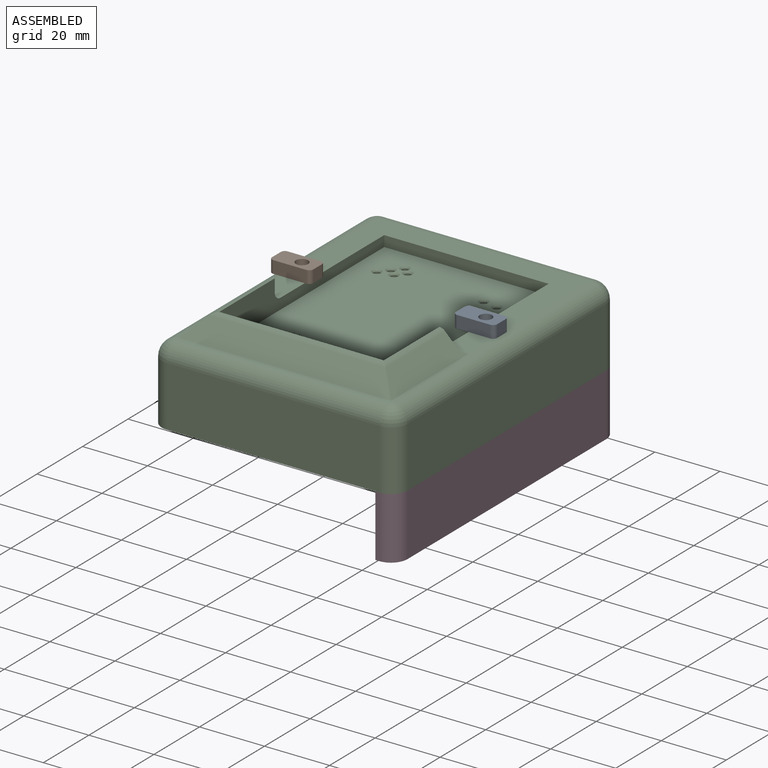
[diagram: assembled view]
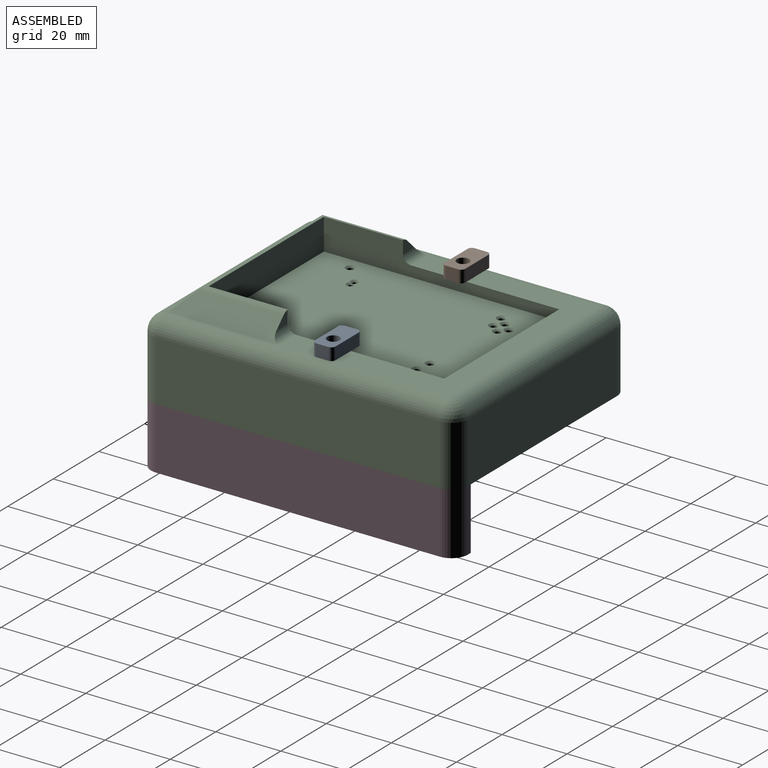
[diagram: assembled view, second angle]
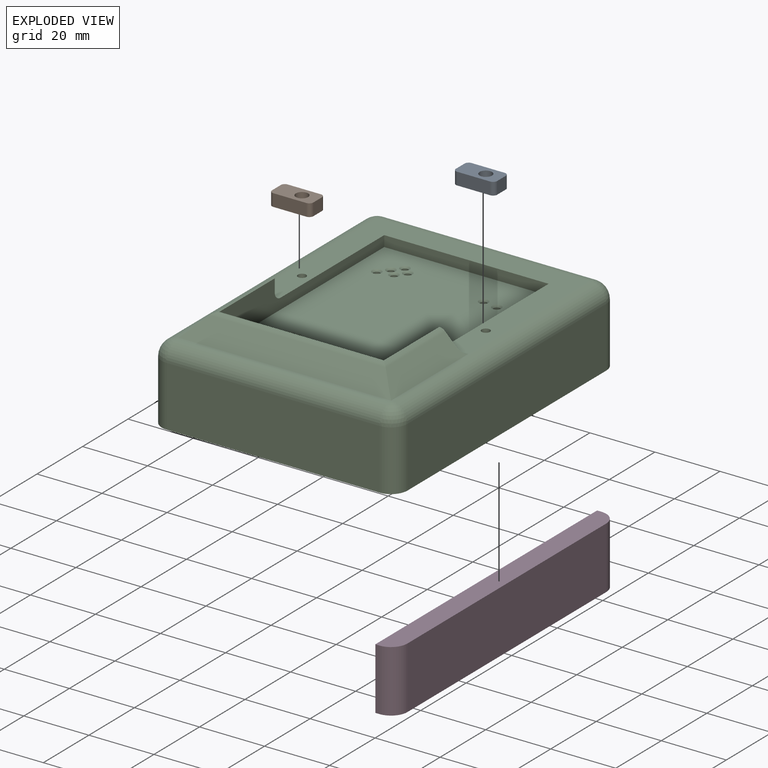
[diagram: exploded view]
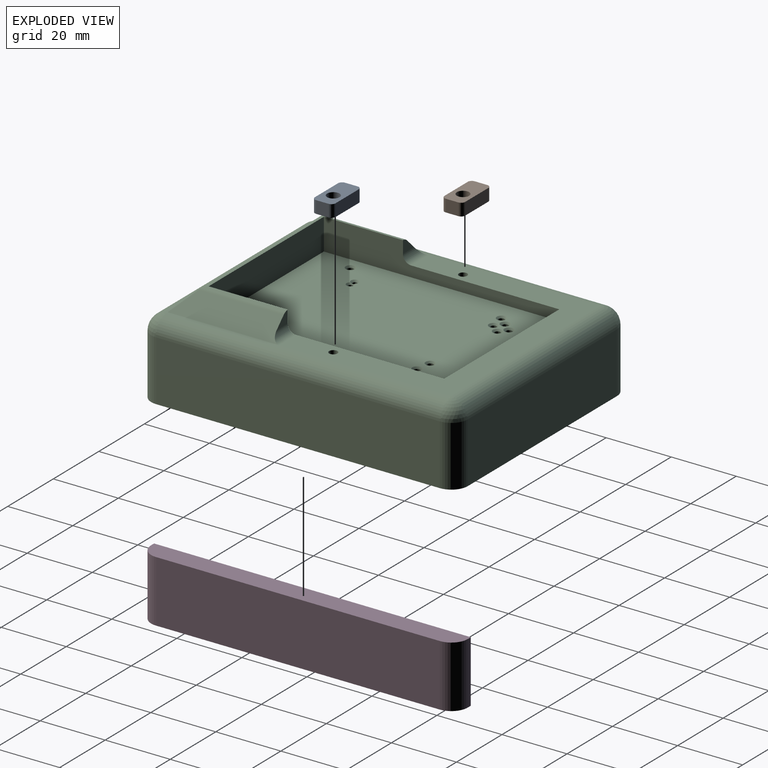
[diagram: exploded view, second angle]
ASSEMBLY  parts=4 mates=3
PART A: 11 faces, bbox 12.7x6.4x3.8 mm
  f0: plane 3.81x3.81mm, normal (1,0,0), area 14.5mm2, adj f5,f6,f7,f10
  f1: plane 10.16x3.81mm, normal (0,1,0), area 38.7mm2, adj f5,f6,f7,f8
  f2: plane 3.81x3.81mm, normal (-1,0,0), area 14.5mm2, adj f5,f6,f8,f9
  f3: cylinder r=1.91mm len=3.81mm, axis (0,0,-1), area 45.6mm2, adj f5,f6
  f4: plane 10.16x3.81mm, normal (0,-1,0), area 38.7mm2, adj f5,f6,f9,f10
  f5: plane 12.7x6.35mm, normal (0,0,1), area 67.9mm2, adj f0,f1,f2,f3,f4,f7,f8,f9
  f6: plane 12.7x6.35mm, normal (0,0,-1), area 67.9mm2, adj f0,f1,f2,f3,f4,f7,f8,f9
  f7: cylinder r=1.27mm len=3.81mm, axis (0,0,-1), area 7.6mm2, adj f0,f1,f5,f6
  f8: cylinder r=1.27mm len=3.81mm, axis (0,0,1), area 7.6mm2, adj f1,f2,f5,f6
  f9: cylinder r=1.27mm len=3.81mm, axis (0,0,-1), area 7.6mm2, adj f2,f4,f5,f6
  f10: cylinder r=1.27mm len=3.81mm, axis (0,0,1), area 7.6mm2, adj f0,f4,f5,f6
PART B: same geometry as A
PART C: 56 faces, bbox 75.6x97.4x30 mm
  f0: plane 87.25x18.54mm, normal (-1,0,0), area 1617.8mm2, adj f11,f35,f41,f44
  f1: plane 65.41x18.54mm, normal (0,-1,0), area 1212.7mm2, adj f11,f38,f42,f44
  f2: plane 87.25x18.54mm, normal (1,0,0), area 1617.8mm2, adj f11,f33,f37,f38
  f3: plane 72.42x9.65mm, normal (-1,0,0), area 395mm2, adj f4,f6,f10,f22,f45,f47,f55
  f4: plane 50.57x9.65mm, normal (0,1,0), area 488.1mm2, adj f3,f5,f22,f47
  f5: plane 72.42x9.65mm, normal (1,0,0), area 395mm2, adj f4,f6,f10,f22,f46,f47,f54
  f6: plane 50.57x3.3mm, normal (0,-1,0), area 167mm2, adj f3,f5,f10,f22
  f7: cylinder r=1.27mm len=23.62mm, axis (0,0,-1), area 188.5mm2, adj f10,f11
  f8: cylinder r=1.27mm len=23.62mm, axis (0,0,-1), area 188.5mm2, adj f10,f11
  f9: plane 65.41x18.54mm, normal (0,1,0), area 1212.7mm2, adj f11,f33,f35,f36
  f10: plane 65.41x52.96mm, normal (0,0,1), area 1150.5mm2, adj f3,f5,f6,f7,f8,f36,f37,f41
  f11: plane 97.41x75.57mm, normal (0,0,-1), area 7302.3mm2, adj f0,f1,f2,f7,f8,f9,f12,f13
  f12: cylinder r=0.72mm len=19.81mm, axis (0,0,-1), area 90.1mm2, adj f11,f23
  f13: cylinder r=0.72mm len=19.81mm, axis (0,0,-1), area 90.1mm2, adj f11,f24
  f14: cylinder r=0.95mm len=19.81mm, axis (0,0,-1), area 118.6mm2, adj f11,f29
  f15: cylinder r=0.95mm len=19.81mm, axis (0,0,-1), area 118.6mm2, adj f11,f28
  f16: cylinder r=0.95mm len=19.81mm, axis (0,0,-1), area 118.6mm2, adj f11,f30
  f17: cylinder r=0.95mm len=19.81mm, axis (0,0,-1), area 118.6mm2, adj f11,f31
  f18: cylinder r=0.95mm len=19.81mm, axis (0,0,-1), area 118.6mm2, adj f11,f32
  f19: cylinder r=0.95mm len=19.81mm, axis (0,0,-1), area 118.6mm2, adj f11,f27
  f20: cylinder r=0.95mm len=19.81mm, axis (0,0,-1), area 118.6mm2, adj f11,f26
  f21: cylinder r=0.95mm len=19.81mm, axis (0,0,-1), area 118.6mm2, adj f11,f25
  f22: plane 72.42x50.57mm, normal (0,0,1), area 3599.6mm2, adj f3,f4,f5,f6,f23,f24,f25,f26
  f23: cone r=0.72mm half-angle=45deg, axis (0,0,1), area 4mm2, adj f12,f22,f24
  f24: cone r=0.72mm half-angle=45deg, axis (0,0,1), area 4mm2, adj f13,f22,f23
  f25: cone r=0.95mm half-angle=45deg, axis (0,0,1), area 5.4mm2, adj f21,f22
  f26: cone r=0.95mm half-angle=45deg, axis (0,0,1), area 5.4mm2, adj f20,f22
  f27: cone r=0.95mm half-angle=45deg, axis (0,0,1), area 5.4mm2, adj f19,f22
  f28: cone r=0.95mm half-angle=45deg, axis (0,0,1), area 5.4mm2, adj f15,f22
  f29: cone r=0.95mm half-angle=45deg, axis (0,0,1), area 5.4mm2, adj f14,f22
  f30: cone r=0.95mm half-angle=45deg, axis (0,0,1), area 5.4mm2, adj f16,f22
  f31: cone r=0.95mm half-angle=45deg, axis (0,0,1), area 5.4mm2, adj f17,f22
  f32: cone r=0.95mm half-angle=45deg, axis (0,0,1), area 5.4mm2, adj f18,f22
  f33: cylinder r=5.08mm len=18.54mm, axis (0,0,-1), area 148mm2, adj f2,f9,f11,f34
  f34: sphere r=5.08mm, area 40.5mm2, adj f33,f36,f37
  f35: cylinder r=5.08mm len=18.54mm, axis (0,0,1), area 148mm2, adj f0,f9,f11,f39
  f36: cylinder r=5.08mm len=65.41mm, axis (1,0,0), area 521.9mm2, adj f9,f10,f34,f39
  f37: cylinder r=5.08mm len=87.25mm, axis (0,-1,0), area 696.2mm2, adj f2,f10,f34,f40,f50
  f38: cylinder r=5.08mm len=18.54mm, axis (0,0,1), area 148mm2, adj f1,f2,f11,f40
  f39: sphere r=5.08mm, area 40.5mm2, adj f35,f36,f41
  f40: sphere r=5.08mm, area 40.5mm2, adj f37,f38,f42
  f41: cylinder r=5.08mm len=87.25mm, axis (0,1,0), area 696.2mm2, adj f0,f10,f39,f43,f48
  f42: cylinder r=5.08mm len=65.41mm, axis (-1,0,0), area 521.9mm2, adj f1,f40,f43,f49
  f43: sphere r=5.08mm, area 40.5mm2, adj f41,f42,f44
  f44: cylinder r=5.08mm len=18.54mm, axis (0,0,-1), area 148mm2, adj f0,f1,f11,f43
  f45: plane 4.88x3.81mm, normal (0,1,0), area 11.2mm2, adj f3,f47,f50,f53,f55
  f46: plane 4.88x3.81mm, normal (0,1,0), area 11.2mm2, adj f5,f47,f48,f51,f54
  f47: plane 50.6x24.35mm, normal (0,0,1), area 1.5mm2, adj f3,f4,f5,f45,f46,f51,f52,f53
  f48: plane 34.29x5.61mm, normal (-0.71,0,0.71), area 231.5mm2, adj f41,f46,f49,f51,f54
  f49: plane 65.41x5.61mm, normal (0,-0.71,0.71), area 474.1mm2, adj f42,f48,f50,f52
  f50: plane 34.29x5.61mm, normal (0.71,0,0.71), area 231.5mm2, adj f37,f45,f49,f53,f55
  f51: cylinder r=2.54mm len=26.14mm, axis (0,-1,0), area 50.5mm2, adj f46,f47,f48,f52
  f52: cylinder r=2.54mm len=54.19mm, axis (1,0,0), area 104.7mm2, adj f47,f49,f51,f53
  f53: cylinder r=2.54mm len=26.14mm, axis (0,1,0), area 50.5mm2, adj f45,f47,f50,f52
  f54: cylinder r=2.54mm len=7.42mm, axis (-1,0,0), area 25.9mm2, adj f5,f10,f46,f48
  f55: cylinder r=2.54mm len=7.42mm, axis (-1,0,0), area 25.9mm2, adj f3,f10,f45,f50
PART D: 8 faces, bbox 6.4x97.4x19.1 mm
  f0: plane 97.41x19.05mm, normal (-1,0,0), area 1855.6mm2, adj f1,f3,f4,f5
  f1: plane 19.05x1.27mm, normal (0,-1,0), area 24.2mm2, adj f0,f4,f5,f6
  f2: plane 87.25x19.05mm, normal (1,0,0), area 1662.1mm2, adj f4,f5,f6,f7
  f3: plane 19.05x1.27mm, normal (0,1,0), area 24.2mm2, adj f0,f4,f5,f7
  f4: plane 97.41x6.35mm, normal (0,0,1), area 607.5mm2, adj f0,f1,f2,f3,f6,f7
  f5: plane 97.41x6.35mm, normal (0,0,-1), area 607.5mm2, adj f0,f1,f2,f3,f6,f7
  f6: cylinder r=5.08mm len=19.05mm, axis (0,0,1), area 152mm2, adj f1,f2,f4,f5
  f7: cylinder r=5.08mm len=19.05mm, axis (0,0,-1), area 152mm2, adj f2,f3,f4,f5
PLACE A t=(35.66,-1.45,5.85)mm
PLACE B t=(-21.01,-1.24,5.85)mm
PLACE C t=(2.5,-2.53,-17.77)mm fixed
PLACE D t=(37.11,-2.53,-36.82)mm
MATE fastened B.f3 <-> C.f7  axis (0,0,-1) through (-25.83,1.93,5.85)mm
MATE fastened A.f3 <-> C.f8  axis (0,0,-1) through (30.84,1.73,5.85)mm
MATE fastened D.f4 <-> C.f11  axis (0,0,1) through (35.2,-51.23,-17.77)mm
